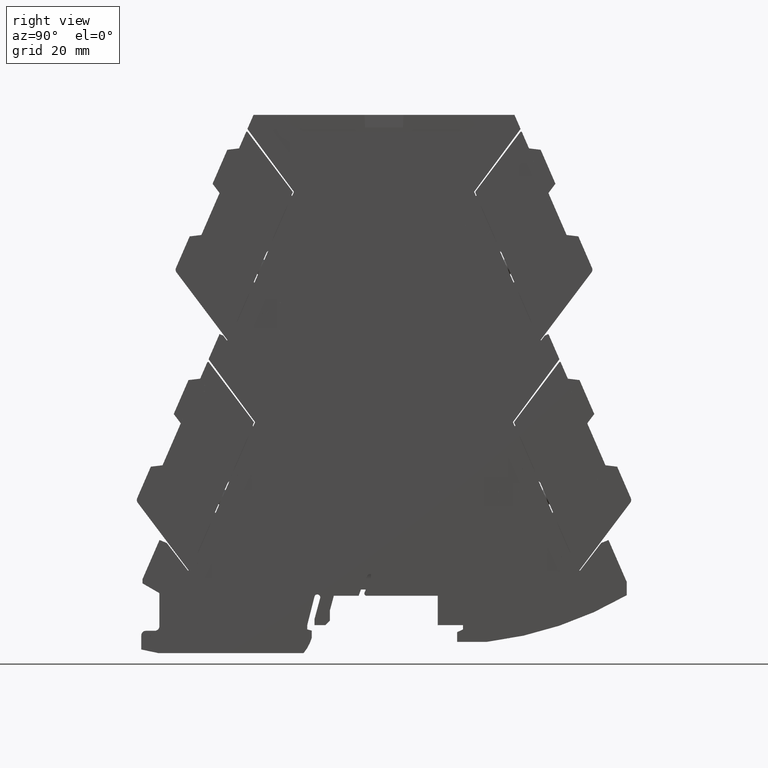
[diagram: clean part render]
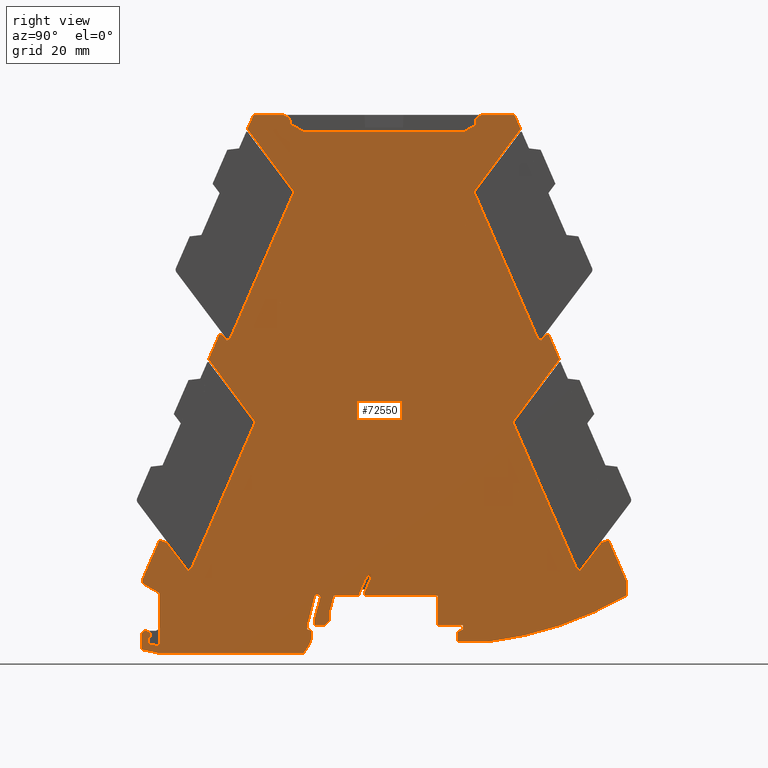
[diagram: same view with one face highlighted and labeled with its STEP entity id]
A machine part, right view. The second image highlights one B-rep face of the part: STEP entity #72550.
In plain terms, the highlighted planar face has unit normal (1, -0, 0).
Its self-contained STEP definition (entity closure, byte-faithful):
#66460=CARTESIAN_POINT('',(31.0485699480267,80.7880698552188,
-8.40000000027808));
#66470=DIRECTION('',(-2.52435655550486E-29,6.5458857184374E-15,1.));
#66480=DIRECTION('',(1.,2.53410721992579E-21,2.52435489670724E-29));
#66490=AXIS2_PLACEMENT_3D('',#66460,#66470,#66480);
#66500=PLANE('',#66490);
#66510=CARTESIAN_POINT('',(-36.7492764080997,-5.05673846836052,
-8.40000000026993));
#66520=DIRECTION('',(8.87912561076062E-12,-6.5458857184369E-15,-1.));
#66530=DIRECTION('',(-1.,-1.11022302459215E-16,-8.87912561076062E-12));
#66540=AXIS2_PLACEMENT_3D('',#66510,#66520,#66530);
#66550=CIRCLE('',#66540,1.);
#66560=CARTESIAN_POINT('',(-37.7492764080997,-5.05673846836052,
-8.40000000027881));
#66570=VERTEX_POINT('',#66560);
#66580=CARTESIAN_POINT('',(-36.1659430747663,-5.86897133042793,
-8.40000000026474));
#66590=VERTEX_POINT('',#66580);
#66600=EDGE_CURVE('',#66570,#66590,#66550,.T.);
#66610=ORIENTED_EDGE('',*,*,#66600,.F.);
#66620=CARTESIAN_POINT('',(-36.0492764080996,-6.03141790284141,
-8.40000000026371));
#66630=DIRECTION('',(8.87912561076062E-12,-6.5458857184369E-15,-1.));
#66640=DIRECTION('',(-1.11022302401093E-16,1.,-6.54588571843789E-15));
#66650=AXIS2_PLACEMENT_3D('',#66620,#66630,#66640);
#66660=CIRCLE('',#66650,0.2);
#66670=CARTESIAN_POINT('',(-36.2492764080996,-6.03141790284142,
-8.40000000026548));
#66680=VERTEX_POINT('',#66670);
#66690=EDGE_CURVE('',#66680,#66590,#66660,.T.);
#66700=ORIENTED_EDGE('',*,*,#66690,.T.);
#66710=CARTESIAN_POINT('',(-36.2492764080996,-1.97775086122127E-13,
-8.40000000026552));
#66720=DIRECTION('',(1.11022302401093E-16,-1.,6.54588571843789E-15));
#66730=VECTOR('',#66720,1.);
#66740=LINE('',#66710,#66730);
#66750=CARTESIAN_POINT('',(-36.2492764080996,-6.89999999999169,
-8.40000000026548));
#66760=VERTEX_POINT('',#66750);
#66770=EDGE_CURVE('',#66680,#66760,#66740,.T.);
#66780=ORIENTED_EDGE('',*,*,#66770,.F.);
#66790=CARTESIAN_POINT('',(1.15118559195513,-15.0305352173948,
-8.39999999993334));
#66800=DIRECTION('',(0.977176363922801,-0.212429644331041,
8.67786027047508E-12));
#66810=VECTOR('',#66800,1.);
#66820=LINE('',#66790,#66810);
#66830=CARTESIAN_POINT('',(-33.7492764080996,-7.44347826086124,
-8.40000000024328));
#66840=VERTEX_POINT('',#66830);
#66850=EDGE_CURVE('',#66760,#66840,#66820,.T.);
#66860=ORIENTED_EDGE('',*,*,#66850,.F.);
#66870=CARTESIAN_POINT('',(-33.7492764080996,-10.2999999999919,
-8.40000000024326));
#66880=DIRECTION('',(-1.11022302401093E-16,1.,-6.54588571843789E-15));
#66890=VECTOR('',#66880,1.);
#66900=LINE('',#66870,#66890);
#66910=CARTESIAN_POINT('',(-33.7492764080996,4.29059892324946,
-8.40000000024335));
#66920=VERTEX_POINT('',#66910);
#66930=EDGE_CURVE('',#66840,#66920,#66900,.T.);
#66940=ORIENTED_EDGE('',*,*,#66930,.F.);
#66950=CARTESIAN_POINT('',(16.0007235920431,-24.4325769690169,
-8.39999999980143));
#66960=DIRECTION('',(-0.866025403784439,0.5,-7.69282128517094E-12));
#66970=VECTOR('',#66960,1.);
#66980=LINE('',#66950,#66970);
#66990=CARTESIAN_POINT('',(-37.4826881752487,6.44608521200866,
-8.40000000027652));
#67000=VERTEX_POINT('',#66990);
#67010=EDGE_CURVE('',#66920,#67000,#66980,.T.);
#67020=ORIENTED_EDGE('',*,*,#67010,.F.);
#67030=CARTESIAN_POINT('',(-37.4826881752487,-1.97912019210798E-13,
-8.40000000027647));
#67040=DIRECTION('',(-5.81221700274194E-26,-1.,6.5458857184369E-15));
#67050=VECTOR('',#67040,1.);
#67060=LINE('',#67030,#67050);
#67070=CARTESIAN_POINT('',(-37.4826881752486,7.38850589467896,
-8.40000000027652));
#67080=VERTEX_POINT('',#67070);
#67090=EDGE_CURVE('',#67080,#67000,#67060,.T.);
#67100=ORIENTED_EDGE('',*,*,#67090,.T.);
#67110=CARTESIAN_POINT('',(-47.5435969064633,-15.7499999999871,
-8.4000000003657));
#67120=DIRECTION('',(-0.398749069928776,-0.917060073948777,
-3.53454010863057E-12));
#67130=VECTOR('',#67120,1.);
#67140=LINE('',#67110,#67130);
#67150=CARTESIAN_POINT('',(-33.7154625218031,16.0525317115858,
-8.40000000024313));
#67160=VERTEX_POINT('',#67150);
#67170=EDGE_CURVE('',#67160,#67080,#67140,.T.);
#67180=ORIENTED_EDGE('',*,*,#67170,.T.);
#67190=CARTESIAN_POINT('',(16.0007235920431,-4.5405873105637,
-8.39999999980156));
#67200=DIRECTION('',(0.923879529460592,-0.382683439730119,
8.20574739335383E-12));
#67210=VECTOR('',#67200,1.);
#67220=LINE('',#67190,#67210);
#67230=CARTESIAN_POINT('',(-32.0991298658879,15.3830247891033,
-8.40000000022877));
#67240=VERTEX_POINT('',#67230);
#67250=EDGE_CURVE('',#67160,#67240,#67220,.T.);
#67260=ORIENTED_EDGE('',*,*,#67250,.F.);
#67270=CARTESIAN_POINT('',(-20.2953199832947,-1.96003881575547E-13,
-8.40000000012386));
#67280=DIRECTION('',(0.608761422684226,-0.79335334514419,
5.41049112021568E-12));
#67290=VECTOR('',#67280,1.);
#67300=LINE('',#67270,#67290);
#67310=CARTESIAN_POINT('',(-27.395125549422,9.25264690874748,
-8.40000000018696));
#67320=VERTEX_POINT('',#67310);
#67330=EDGE_CURVE('',#67240,#67320,#67300,.T.);
#67340=ORIENTED_EDGE('',*,*,#67330,.F.);
#67350=CARTESIAN_POINT('',(16.0007235920431,41.9537642440418,
-8.39999999980186));
#67360=DIRECTION('',(-0.798635514844872,-0.601815016785445,
-7.08724564119859E-12));
#67370=VECTOR('',#67360,1.);
#67380=LINE('',#67350,#67370);
#67390=CARTESIAN_POINT('',(-26.596490034467,9.85446192561595,
-8.40000000017988));
#67400=VERTEX_POINT('',#67390);
#67410=EDGE_CURVE('',#67400,#67320,#67380,.T.);
#67420=ORIENTED_EDGE('',*,*,#67410,.T.);
#67430=CARTESIAN_POINT('',(-37.6816886008946,-15.6397493820656,
-8.40000000027814));
#67440=DIRECTION('',(-0.398749068924602,-0.917060074385404,
-3.53454009971152E-12));
#67450=VECTOR('',#67440,1.);
#67460=LINE('',#67430,#67450);
#67470=CARTESIAN_POINT('',(-12.5490777100436,42.161298467958,
-8.40000000005536));
#67480=VERTEX_POINT('',#67470);
#67490=EDGE_CURVE('',#67480,#67400,#67460,.T.);
#67500=ORIENTED_EDGE('',*,*,#67490,.T.);
#67510=CARTESIAN_POINT('',(30.3030289597346,-15.749999999987,
-8.39999999967449));
#67520=DIRECTION('',(-0.594822786743645,0.803856860622912,
-5.28676819478312E-12));
#67530=VECTOR('',#67520,1.);
#67540=LINE('',#67510,#67530);
#67550=CARTESIAN_POINT('',(-22.8222550002825,56.0447007672601,
-8.40000000014667));
#67560=VERTEX_POINT('',#67550);
#67570=EDGE_CURVE('',#67480,#67560,#67540,.T.);
#67580=ORIENTED_EDGE('',*,*,#67570,.F.);
#67590=CARTESIAN_POINT('',(-22.8222550002825,-1.96284421315774E-13,
-8.4000000001463));
#67600=DIRECTION('',(-5.81221700274194E-26,-1.,6.5458857184369E-15));
#67610=VECTOR('',#67600,1.);
#67620=LINE('',#67590,#67610);
#67630=CARTESIAN_POINT('',(-22.8222550002825,56.1522509362226,
-8.40000000014667));
#67640=VERTEX_POINT('',#67630);
#67650=EDGE_CURVE('',#67640,#67560,#67620,.T.);
#67660=ORIENTED_EDGE('',*,*,#67650,.T.);
#67670=CARTESIAN_POINT('',(-54.0862434948307,-15.7499999999871,
-8.40000000042379));
#67680=DIRECTION('',(-0.39874906892458,-0.917060074385414,
-3.53454009971132E-12));
#67690=VECTOR('',#67680,1.);
#67700=LINE('',#67670,#67690);
#67710=CARTESIAN_POINT('',(-20.4270229818225,61.6609074427903,
-8.40000000012544));
#67720=VERTEX_POINT('',#67710);
#67730=EDGE_CURVE('',#67720,#67640,#67700,.T.);
#67740=ORIENTED_EDGE('',*,*,#67730,.T.);
#67750=CARTESIAN_POINT('',(16.0007235920431,46.5720404249845,
-8.39999999980189));
#67760=DIRECTION('',(0.923879529460593,-0.382683439730116,
8.20574739335384E-12));
#67770=VECTOR('',#67760,1.);
#67780=LINE('',#67750,#67770);
#67790=CARTESIAN_POINT('',(-19.618856654371,61.3261539817587,
-8.40000000011826));
#67800=VERTEX_POINT('',#67790);
#67810=EDGE_CURVE('',#67720,#67800,#67780,.T.);
#67820=ORIENTED_EDGE('',*,*,#67810,.F.);
#67830=CARTESIAN_POINT('',(27.4383555880533,-1.90704499971027E-13,
-8.39999999970003));
#67840=DIRECTION('',(0.608761422684226,-0.79335334514419,
5.41049112021568E-12));
#67850=VECTOR('',#67840,1.);
#67860=LINE('',#67830,#67850);
#67870=CARTESIAN_POINT('',(-18.7951253488245,60.2526464262474,
-8.40000000011094));
#67880=VERTEX_POINT('',#67870);
#67890=EDGE_CURVE('',#67800,#67880,#67860,.T.);
#67900=ORIENTED_EDGE('',*,*,#67890,.F.);
#67910=CARTESIAN_POINT('',(16.0007235920431,86.4731988875032,
-8.39999999980216));
#67920=DIRECTION('',(-0.798635514844872,-0.601815016785445,
-7.08724564119859E-12));
#67930=VECTOR('',#67920,1.);
#67940=LINE('',#67910,#67930);
#67950=CARTESIAN_POINT('',(-17.9964898333609,60.8544614453798,
-8.40000000010385));
#67960=VERTEX_POINT('',#67950);
#67970=EDGE_CURVE('',#67960,#67880,#67940,.T.);
#67980=ORIENTED_EDGE('',*,*,#67970,.T.);
#67990=CARTESIAN_POINT('',(-29.0816883997885,35.3602501376983,
-8.40000000020211));
#68000=DIRECTION('',(-0.398749068924602,-0.917060074385404,
-3.53454009971152E-12));
#68010=VECTOR('',#68000,1.);
#68020=LINE('',#67990,#68010);
#68030=CARTESIAN_POINT('',(-3.94907750974744,93.1612979858592,
-8.39999999997934));
#68040=VERTEX_POINT('',#68030);
#68050=EDGE_CURVE('',#68040,#67960,#68020,.T.);
#68060=ORIENTED_EDGE('',*,*,#68050,.T.);
#68070=CARTESIAN_POINT('',(76.6410436289936,-15.749999999987,
-8.39999999926305));
#68080=DIRECTION('',(0.594822786743645,-0.803856860622912,
5.28676819478312E-12));
#68090=VECTOR('',#68080,1.);
#68100=LINE('',#68070,#68090);
#68110=CARTESIAN_POINT('',(-14.2517103911821,107.084507232027,
-8.40000000007091));
#68120=VERTEX_POINT('',#68110);
#68130=EDGE_CURVE('',#68120,#68040,#68100,.T.);
#68140=ORIENTED_EDGE('',*,*,#68130,.T.);
#68150=CARTESIAN_POINT('',(-67.6616742078144,-15.7499999999871,
-8.40000000054433));
#68160=DIRECTION('',(-0.398749068924771,-0.91706007438533,
-3.53454009971302E-12));
#68170=VECTOR('',#68160,1.);
#68180=LINE('',#68150,#68170);
#68190=CARTESIAN_POINT('',(-12.8970555815698,110.20000000016,
-8.4000000000589));
#68200=VERTEX_POINT('',#68190);
#68210=EDGE_CURVE('',#68200,#68120,#68180,.T.);
#68220=ORIENTED_EDGE('',*,*,#68210,.T.);
#68230=CARTESIAN_POINT('',(16.0007235920431,110.200000000008,
-8.39999999980231));
#68240=DIRECTION('',(-1.,-1.11019657239831E-16,-8.87912561076062E-12));
#68250=VECTOR('',#68240,1.);
#68260=LINE('',#68230,#68250);
#68270=CARTESIAN_POINT('',(-6.49927640809768,110.200000000144,
-8.4000000000038));
#68280=VERTEX_POINT('',#68270);
#68290=EDGE_CURVE('',#68280,#68200,#68260,.T.);
#68300=ORIENTED_EDGE('',*,*,#68290,.T.);
#68310=CARTESIAN_POINT('',(-6.49927640809768,108.400000000144,
-8.40000000000208));
#68320=DIRECTION('',(2.33276942258406E-12,9.5452831765337E-13,1.));
#68330=DIRECTION('',(1.,1.11022309450837E-16,-2.33276942258406E-12));
#68340=AXIS2_PLACEMENT_3D('',#68310,#68320,#68330);
#68350=CIRCLE('',#68340,1.8);
#68360=CARTESIAN_POINT('',(-4.69927640809768,108.40000000013,
-8.40000000000628));
#68370=VERTEX_POINT('',#68360);
#68380=EDGE_CURVE('',#68370,#68280,#68350,.T.);
#68390=ORIENTED_EDGE('',*,*,#68380,.T.);
#68400=CARTESIAN_POINT('',(-4.69927640809765,-1.94272412430621E-13,
-8.39999999998539));
#68410=DIRECTION('',(1.11022302397372E-16,-1.,6.54588571843789E-15));
#68420=VECTOR('',#68410,1.);
#68430=LINE('',#68400,#68420);
#68440=CARTESIAN_POINT('',(-4.69927640817636,108.195448267175,
-8.3999999999861));
#68450=VERTEX_POINT('',#68440);
#68460=EDGE_CURVE('',#68370,#68450,#68430,.T.);
#68470=ORIENTED_EDGE('',*,*,#68460,.F.);
#68480=CARTESIAN_POINT('',(15.992839759395,96.2488494276393,
-8.39999999980229));
#68490=DIRECTION('',(0.86602540378293,-0.500000000002613,
7.69282128515756E-12));
#68500=VECTOR('',#68490,1.);
#68510=LINE('',#68480,#68500);
#68520=CARTESIAN_POINT('',(-1.84927640843099,106.550000000118,
-8.39999999996078));
#68530=VERTEX_POINT('',#68520);
#68540=EDGE_CURVE('',#68450,#68530,#68510,.T.);
#68550=ORIENTED_EDGE('',*,*,#68540,.F.);
#68560=CARTESIAN_POINT('',(16.0007235920431,106.550000000064,
-8.39999999980229));
#68570=DIRECTION('',(1.,-3.03140845380314E-12,8.87912561076064E-12));
#68580=VECTOR('',#68570,1.);
#68590=LINE('',#68560,#68580);
#68600=CARTESIAN_POINT('',(33.8507235915408,106.55000000001,
-8.39999999964379));
#68610=VERTEX_POINT('',#68600);
#68620=EDGE_CURVE('',#68530,#68610,#68590,.T.);
#68630=ORIENTED_EDGE('',*,*,#68620,.F.);
#68640=CARTESIAN_POINT('',(16.0086074241903,96.2488494279499,
-8.39999999980215));
#68650=DIRECTION('',(-0.866025403785962,-0.499999999997362,
-7.68627539946604E-12));
#68660=VECTOR('',#68650,1.);
#68670=LINE('',#68640,#68660);
#68680=CARTESIAN_POINT('',(36.2007235915683,107.906773132985,
-8.39999999962294));
#68690=VERTEX_POINT('',#68680);
#68700=EDGE_CURVE('',#68690,#68610,#68670,.T.);
#68710=ORIENTED_EDGE('',*,*,#68700,.T.);
#68720=CARTESIAN_POINT('',(36.2007235915683,-1.89731703905062E-13,
-8.39999999962223));
#68730=DIRECTION('',(1.11022301047922E-16,-1.,6.54588571843789E-15));
#68740=VECTOR('',#68730,1.);
#68750=LINE('',#68720,#68740);
#68760=CARTESIAN_POINT('',(36.2007235915683,108.400000000117,
-8.39999999962294));
#68770=VERTEX_POINT('',#68760);
#68780=EDGE_CURVE('',#68770,#68690,#68750,.T.);
#68790=ORIENTED_EDGE('',*,*,#68780,.T.);
#68800=CARTESIAN_POINT('',(38.000723591985,108.400000000118,
-8.39999999960695));
#68810=DIRECTION('',(-7.50321528832784E-11,3.82693666728665E-11,1.));
#68820=DIRECTION('',(2.8714329709512E-21,1.,-3.82693666728665E-11));
#68830=AXIS2_PLACEMENT_3D('',#68800,#68810,#68820);
#68840=CIRCLE('',#68830,1.79999999999999);
#68850=CARTESIAN_POINT('',(38.000723591985,110.20000000016,
-8.39999999960697));
#68860=VERTEX_POINT('',#68850);
#68870=EDGE_CURVE('',#68860,#68770,#68840,.T.);
#68880=ORIENTED_EDGE('',*,*,#68870,.T.);
#68890=CARTESIAN_POINT('',(16.0007235920431,110.200000000008,
-8.39999999980231));
#68900=DIRECTION('',(1.,1.11022302260128E-16,8.87912561076062E-12));
#68910=VECTOR('',#68900,1.);
#68920=LINE('',#68890,#68910);
#68930=CARTESIAN_POINT('',(44.898502765186,110.20000000016,
-8.39999999954572));
#68940=VERTEX_POINT('',#68930);
#68950=EDGE_CURVE('',#68860,#68940,#68920,.T.);
#68960=ORIENTED_EDGE('',*,*,#68950,.F.);
#68970=CARTESIAN_POINT('',(99.6631213914307,-15.7499999998392,
-8.39999999905848));
#68980=DIRECTION('',(0.398749068924771,-0.917060074385331,
3.54654604060076E-12));
#68990=VECTOR('',#68980,1.);
#69000=LINE('',#68970,#68990);
#69010=CARTESIAN_POINT('',(46.2531575747983,107.084507232175,
-8.39999999953368));
#69020=VERTEX_POINT('',#69010);
#69030=EDGE_CURVE('',#68940,#69020,#69000,.T.);
#69040=ORIENTED_EDGE('',*,*,#69030,.F.);
#69050=CARTESIAN_POINT('',(-44.6395964453774,-15.7499999998392,
-8.40000000033976));
#69060=DIRECTION('',(-0.594822786743645,-0.803856860622912,
-5.27624428449589E-12));
#69070=VECTOR('',#69060,1.);
#69080=LINE('',#69050,#69070);
#69090=CARTESIAN_POINT('',(35.9505246933637,93.161297986007,
-8.39999999962506));
#69100=VERTEX_POINT('',#69090);
#69110=EDGE_CURVE('',#69020,#69100,#69080,.T.);
#69120=ORIENTED_EDGE('',*,*,#69110,.F.);
#69130=CARTESIAN_POINT('',(61.0831355834047,35.3602501378461,
-8.39999999940137));
#69140=DIRECTION('',(0.398749068924602,-0.917060074385404,
3.54654604059925E-12));
#69150=VECTOR('',#69140,1.);
#69160=LINE('',#69130,#69150);
#69170=CARTESIAN_POINT('',(49.9979370169772,60.8544614455276,
-8.39999999949996));
#69180=VERTEX_POINT('',#69170);
#69190=EDGE_CURVE('',#69100,#69180,#69160,.T.);
#69200=ORIENTED_EDGE('',*,*,#69190,.F.);
#69210=CARTESIAN_POINT('',(16.0007235915731,86.4731988876511,
-8.399999999802));
#69220=DIRECTION('',(0.798635514844873,-0.601815016785445,
7.09512446584562E-12));
#69230=VECTOR('',#69220,1.);
#69240=LINE('',#69210,#69230);
#69250=CARTESIAN_POINT('',(50.7965725324408,60.2526464263953,
-8.39999999949287));
#69260=VERTEX_POINT('',#69250);
#69270=EDGE_CURVE('',#69180,#69260,#69240,.T.);
#69280=ORIENTED_EDGE('',*,*,#69270,.F.);
#69290=CARTESIAN_POINT('',(4.56309159556294,1.47644561573134E-10,
-8.39999999990299));
#69300=DIRECTION('',(-0.608761422684226,-0.79335334514419,
-5.40004715778149E-12));
#69310=VECTOR('',#69300,1.);
#69320=LINE('',#69290,#69310);
#69330=CARTESIAN_POINT('',(51.6203038379872,61.3261539819065,
-8.39999999948557));
#69340=VERTEX_POINT('',#69330);
#69350=EDGE_CURVE('',#69340,#69260,#69320,.T.);
#69360=ORIENTED_EDGE('',*,*,#69350,.T.);
#69370=CARTESIAN_POINT('',(16.0007235915731,46.5720404251324,
-8.39999999980174));
#69380=DIRECTION('',(-0.923879529460593,-0.382683439730116,
-8.20073738922822E-12));
#69390=VECTOR('',#69380,1.);
#69400=LINE('',#69370,#69390);
#69410=CARTESIAN_POINT('',(52.4284701654388,61.6609074429381,
-8.39999999947839));
#69420=VERTEX_POINT('',#69410);
#69430=EDGE_CURVE('',#69420,#69340,#69400,.T.);
#69440=ORIENTED_EDGE('',*,*,#69430,.T.);
#69450=CARTESIAN_POINT('',(86.0876906784469,-15.7499999998392,
-8.39999999917902));
#69460=DIRECTION('',(0.39874906892458,-0.917060074385414,
3.54654604059906E-12));
#69470=VECTOR('',#69460,1.);
#69480=LINE('',#69450,#69470);
#69490=CARTESIAN_POINT('',(54.8237021838729,56.1522509364297,
-8.39999999945724));
#69500=VERTEX_POINT('',#69490);
#69510=EDGE_CURVE('',#69420,#69500,#69480,.T.);
#69520=ORIENTED_EDGE('',*,*,#69510,.F.);
#69530=CARTESIAN_POINT('',(54.823702183873,-1.8766418513572E-13,
-8.39999999945687));
#69540=DIRECTION('',(5.81221700274194E-26,1.,-6.5458857184369E-15));
#69550=VECTOR('',#69540,1.);
#69560=LINE('',#69530,#69550);
#69570=CARTESIAN_POINT('',(54.823702183873,56.0447007673732,
-8.39999999945724));
#69580=VERTEX_POINT('',#69570);
#69590=EDGE_CURVE('',#69580,#69500,#69560,.T.);
#69600=ORIENTED_EDGE('',*,*,#69590,.T.);
#69610=CARTESIAN_POINT('',(1.69841822388164,-15.7499999998392,
-8.39999999992832));
#69620=DIRECTION('',(0.594822786743645,0.803856860622912,
5.27624428449589E-12));
#69630=VECTOR('',#69620,1.);
#69640=LINE('',#69610,#69630);
#69650=CARTESIAN_POINT('',(44.5505248936598,42.1612984681058,
-8.39999999954821));
#69660=VERTEX_POINT('',#69650);
#69670=EDGE_CURVE('',#69660,#69580,#69640,.T.);
#69680=ORIENTED_EDGE('',*,*,#69670,.T.);
#69690=CARTESIAN_POINT('',(69.6831357845108,-15.6397493819178,
-8.39999999932468));
#69700=DIRECTION('',(0.398749068924602,-0.917060074385404,
3.54654604059925E-12));
#69710=VECTOR('',#69700,1.);
#69720=LINE('',#69690,#69710);
#69730=CARTESIAN_POINT('',(58.5979372180832,9.85446192576378,
-8.39999999942327));
#69740=VERTEX_POINT('',#69730);
#69750=EDGE_CURVE('',#69660,#69740,#69720,.T.);
#69760=ORIENTED_EDGE('',*,*,#69750,.F.);
#69770=CARTESIAN_POINT('',(16.0007235920431,41.9537642439283,
-8.39999999980186));
#69780=DIRECTION('',(0.798635514844873,-0.601815016785445,
7.09512446584562E-12));
#69790=VECTOR('',#69780,1.);
#69800=LINE('',#69770,#69790);
#69810=CARTESIAN_POINT('',(59.3965727331085,9.25264690841672,
-8.39999999941633));
#69820=VERTEX_POINT('',#69810);
#69830=EDGE_CURVE('',#69740,#69820,#69800,.T.);
#69840=ORIENTED_EDGE('',*,*,#69830,.F.);
#69850=CARTESIAN_POINT('',(52.2967671672304,-1.87944724875908E-13,
-8.39999999947931));
#69860=DIRECTION('',(-0.608761422684226,-0.793353345144191,
-5.40008277935982E-12));
#69870=VECTOR('',#69860,1.);
#69880=LINE('',#69850,#69870);
#69890=CARTESIAN_POINT('',(64.1005770538573,15.3830247943601,
-8.3999999993746));
#69900=VERTEX_POINT('',#69890);
#69910=EDGE_CURVE('',#69900,#69820,#69880,.T.);
#69920=ORIENTED_EDGE('',*,*,#69910,.T.);
#69930=CARTESIAN_POINT('',(16.0007235920431,-4.54058730691545,
-8.39999999980156));
#69940=DIRECTION('',(-0.923879529460591,-0.382683439730121,
-8.20073738922819E-12));
#69950=VECTOR('',#69940,1.);
#69960=LINE('',#69930,#69950);
#69970=CARTESIAN_POINT('',(65.7169097087608,16.0525317164236,
-8.39999999936026));
#69980=VERTEX_POINT('',#69970);
#69990=EDGE_CURVE('',#69980,#69900,#69960,.T.);
#70000=ORIENTED_EDGE('',*,*,#69990,.T.);
#70010=CARTESIAN_POINT('',(79.5450440541298,-15.749999999987,
-8.39999999923727));
#70020=DIRECTION('',(-0.398749068924908,0.917060074385271,
-3.54654604060197E-12));
#70030=VECTOR('',#70020,1.);
#70040=LINE('',#70010,#70030);
#70050=CARTESIAN_POINT('',(69.750723591901,6.77539492033617,
-8.39999999932438));
#70060=VERTEX_POINT('',#70050);
#70070=EDGE_CURVE('',#70060,#69980,#70040,.T.);
#70080=ORIENTED_EDGE('',*,*,#70070,.T.);
#70090=CARTESIAN_POINT('',(69.750723591901,-15.749999999987,
-8.39999999932423));
#70100=DIRECTION('',(1.11022302400457E-16,-1.,6.54588571843789E-15));
#70110=VECTOR('',#70100,1.);
#70120=LINE('',#70090,#70110);
#70130=CARTESIAN_POINT('',(69.750723591901,3.81290792925418,
-8.39999999932436));
#70140=VERTEX_POINT('',#70130);
#70150=EDGE_CURVE('',#70060,#70140,#70120,.T.);
#70160=ORIENTED_EDGE('',*,*,#70150,.F.);
#70170=CARTESIAN_POINT('',(29.5007235919003,72.9500000000085,
-8.3999999996822));
#70180=DIRECTION('',(-8.87912561076062E-12,6.5458857184369E-15,1.));
#70190=DIRECTION('',(1.,1.11022302459215E-16,8.87912561076062E-12));
#70200=AXIS2_PLACEMENT_3D('',#70170,#70180,#70190);
#70210=CIRCLE('',#70200,80.0000000000001);
#70220=CARTESIAN_POINT('',(38.8654179275423,-6.49999999999153,
-8.39999999959853));
#70230=VERTEX_POINT('',#70220);
#70240=EDGE_CURVE('',#70230,#70140,#70210,.T.);
#70250=ORIENTED_EDGE('',*,*,#70240,.T.);
#70260=CARTESIAN_POINT('',(16.0007235920431,-6.49999999999153,
-8.39999999980155));
#70270=DIRECTION('',(-1.,-1.11022302516409E-16,-8.87912561076062E-12));
#70280=VECTOR('',#70270,1.);
#70290=LINE('',#70260,#70280);
#70300=CARTESIAN_POINT('',(32.2007235919003,-6.49999999999153,
-8.39999999965771));
#70310=VERTEX_POINT('',#70300);
#70320=EDGE_CURVE('',#70230,#70310,#70290,.T.);
#70330=ORIENTED_EDGE('',*,*,#70320,.F.);
#70340=CARTESIAN_POINT('',(32.2007235919003,-10.2999999999919,
-8.39999999965768));
#70350=DIRECTION('',(-1.11022302401093E-16,1.,-6.54588571843789E-15));
#70360=VECTOR('',#70350,1.);
#70370=LINE('',#70340,#70360);
#70380=CARTESIAN_POINT('',(32.2007235919003,-4.35619995559415,
-8.39999999965772));
#70390=VERTEX_POINT('',#70380);
#70400=EDGE_CURVE('',#70310,#70390,#70370,.T.);
#70410=ORIENTED_EDGE('',*,*,#70400,.F.);
#70420=CARTESIAN_POINT('',(16.0007235920431,-11.9103840176385,
-8.39999999980151));
#70430=DIRECTION('',(-0.90630778703665,-0.4226182617407,
-8.04445427226503E-12));
#70440=VECTOR('',#70430,1.);
#70450=LINE('',#70420,#70440);
#70460=CARTESIAN_POINT('',(33.5007235919003,-3.74999999999265,
-8.39999999964618));
#70470=VERTEX_POINT('',#70460);
#70480=EDGE_CURVE('',#70470,#70390,#70450,.T.);
#70490=ORIENTED_EDGE('',*,*,#70480,.T.);
#70500=CARTESIAN_POINT('',(33.5007235919003,-10.2999999999919,
-8.39999999964614));
#70510=DIRECTION('',(1.11022302401093E-16,-1.,6.54588571843789E-15));
#70520=VECTOR('',#70510,1.);
#70530=LINE('',#70500,#70520);
#70540=CARTESIAN_POINT('',(33.5007235919003,-2.79999999999156,
-8.39999999964619));
#70550=VERTEX_POINT('',#70540);
#70560=EDGE_CURVE('',#70550,#70470,#70530,.T.);
#70570=ORIENTED_EDGE('',*,*,#70560,.T.);
#70580=CARTESIAN_POINT('',(16.0007235920431,-2.79999999999156,
-8.39999999980157));
#70590=DIRECTION('',(-1.,-1.11022302516409E-16,-8.87912561076062E-12));
#70600=VECTOR('',#70590,1.);
#70610=LINE('',#70580,#70600);
#70620=CARTESIAN_POINT('',(27.9007235919005,-2.79999999999156,
-8.39999999969591));
#70630=VERTEX_POINT('',#70620);
#70640=EDGE_CURVE('',#70550,#70630,#70610,.T.);
#70650=ORIENTED_EDGE('',*,*,#70640,.F.);
#70660=CARTESIAN_POINT('',(27.9007235919005,-10.2999999999919,
-8.39999999969586));
#70670=DIRECTION('',(-1.11022302401093E-16,1.,-6.54588571843789E-15));
#70680=VECTOR('',#70670,1.);
#70690=LINE('',#70660,#70680);
#70700=CARTESIAN_POINT('',(27.9007235919005,3.70000000000824,
-8.39999999969595));
#70710=VERTEX_POINT('',#70700);
#70720=EDGE_CURVE('',#70630,#70710,#70690,.T.);
#70730=ORIENTED_EDGE('',*,*,#70720,.F.);
#70740=CARTESIAN_POINT('',(1.15118559195512,3.70000000000824,
-8.40000000154305));
#70750=DIRECTION('',(1.,1.11022302459213E-16,8.87912561076062E-12));
#70760=VECTOR('',#70750,1.);
#70770=LINE('',#70740,#70760);
#70780=CARTESIAN_POINT('',(12.1503137597697,3.7000000001435,
-8.40000000144538));
#70790=VERTEX_POINT('',#70780);
#70800=EDGE_CURVE('',#70790,#70710,#70770,.T.);
#70810=ORIENTED_EDGE('',*,*,#70800,.T.);
#70820=CARTESIAN_POINT('',(12.1503137597697,4.2000000001435,
-8.3999999998358));
#70830=DIRECTION('',(-8.87912561076062E-12,6.49014673646192E-15,1.));
#70840=DIRECTION('',(1.,1.11022302459215E-16,8.87912561076062E-12));
#70850=AXIS2_PLACEMENT_3D('',#70820,#70830,#70840);
#70860=CIRCLE('',#70850,0.5);
#70870=CARTESIAN_POINT('',(11.6821030178369,4.37543859663472,
-8.39999999983996));
#70880=VERTEX_POINT('',#70870);
#70890=EDGE_CURVE('',#70880,#70790,#70860,.T.);
#70900=ORIENTED_EDGE('',*,*,#70890,.T.);
#70910=CARTESIAN_POINT('',(33.5007235919018,-3.79999999985613,
-8.39999999964618));
#70920=DIRECTION('',(-8.87912561076062E-12,6.49014673646192E-15,1.));
#70930=DIRECTION('',(1.,1.11022302459215E-16,8.87912561076062E-12));
#70940=AXIS2_PLACEMENT_3D('',#70910,#70920,#70930);
#70950=CIRCLE('',#70940,23.3);
#70960=CARTESIAN_POINT('',(13.0907235918997,7.43930157986456,
-8.39999999982747));
#70970=VERTEX_POINT('',#70960);
#70980=EDGE_CURVE('',#70970,#70880,#70950,.T.);
#70990=ORIENTED_EDGE('',*,*,#70980,.T.);
#71000=CARTESIAN_POINT('',(13.0907235918997,-1.9229737075164E-13,
-8.39999999982743));
#71010=DIRECTION('',(1.11022302401093E-16,-1.,6.54588571843789E-15));
#71020=VECTOR('',#71010,1.);
#71030=LINE('',#71000,#71020);
#71040=CARTESIAN_POINT('',(13.0907235918997,8.45000000014386,
-8.39999999982748));
#71050=VERTEX_POINT('',#71040);
#71060=EDGE_CURVE('',#71050,#70970,#71030,.T.);
#71070=ORIENTED_EDGE('',*,*,#71060,.T.);
#71080=CARTESIAN_POINT('',(1.15118559195512,8.45000000014386,
-8.39999999993349));
#71090=DIRECTION('',(1.,1.11022302459207E-16,8.87912561076062E-12));
#71100=VECTOR('',#71090,1.);
#71110=LINE('',#71080,#71100);
#71120=CARTESIAN_POINT('',(12.5143589710343,8.45000000014386,
-8.3999999998326));
#71130=VERTEX_POINT('',#71120);
#71140=EDGE_CURVE('',#71130,#71050,#71110,.T.);
#71150=ORIENTED_EDGE('',*,*,#71140,.T.);
#71160=CARTESIAN_POINT('',(33.5007235919018,-3.79999999985613,
-8.39999999964618));
#71170=DIRECTION('',(-8.87912561076062E-12,6.49014673646192E-15,1.));
#71180=DIRECTION('',(1.,1.11022302459215E-16,8.87912561076062E-12));
#71190=AXIS2_PLACEMENT_3D('',#71160,#71170,#71180);
#71200=CIRCLE('',#71190,24.3);
#71210=CARTESIAN_POINT('',(10.387091250792,3.70000000000824,
-8.40000000146104));
#71220=VERTEX_POINT('',#71210);
#71230=EDGE_CURVE('',#71130,#71220,#71200,.T.);
#71240=ORIENTED_EDGE('',*,*,#71230,.F.);
#71250=CARTESIAN_POINT('',(16.0007235920431,3.70000000000824,
-8.39999999980161));
#71260=DIRECTION('',(-1.,-1.11022302459215E-16,-8.87912561076062E-12));
#71270=VECTOR('',#71260,1.);
#71280=LINE('',#71250,#71270);
#71290=CARTESIAN_POINT('',(4.89244269033672,3.70000000000824,
-8.39999999990025));
#71300=VERTEX_POINT('',#71290);
#71310=EDGE_CURVE('',#71220,#71300,#71280,.T.);
#71320=ORIENTED_EDGE('',*,*,#71310,.F.);
#71330=CARTESIAN_POINT('',(1.10939196970329,-10.2999999999919,
-8.39999999993374));
#71340=DIRECTION('',(0.260861917169192,0.965376123679685,
2.30990648782818E-12));
#71350=VECTOR('',#71340,1.);
#71360=LINE('',#71330,#71350);
#71370=CARTESIAN_POINT('',(4.00072359190165,0.400000000008041,
-8.39999999990814));
#71380=VERTEX_POINT('',#71370);
#71390=EDGE_CURVE('',#71380,#71300,#71360,.T.);
#71400=ORIENTED_EDGE('',*,*,#71390,.T.);
#71410=CARTESIAN_POINT('',(4.00072359190165,-10.2999999999919,
-8.39999999990807));
#71420=DIRECTION('',(-1.11022302401093E-16,1.,-6.54588571843789E-15));
#71430=VECTOR('',#71420,1.);
#71440=LINE('',#71410,#71430);
#71450=CARTESIAN_POINT('',(4.00072359190165,-1.79999999999194,
-8.39999999990813));
#71460=VERTEX_POINT('',#71450);
#71470=EDGE_CURVE('',#71460,#71380,#71440,.T.);
#71480=ORIENTED_EDGE('',*,*,#71470,.T.);
#71490=CARTESIAN_POINT('',(16.0007235920431,10.2000000001495,
-8.39999999980166));
#71500=DIRECTION('',(0.707106781186548,0.707106781186547,
6.27386129019561E-12));
#71510=VECTOR('',#71500,1.);
#71520=LINE('',#71490,#71510);
#71530=CARTESIAN_POINT('',(3.00072359190204,-2.79999999999155,
-8.399999999917));
#71540=VERTEX_POINT('',#71530);
#71550=EDGE_CURVE('',#71540,#71460,#71520,.T.);
#71560=ORIENTED_EDGE('',*,*,#71550,.T.);
#71570=CARTESIAN_POINT('',(16.0007235920431,-2.79999999999155,
-8.39999999980157));
#71580=DIRECTION('',(-1.,-1.11022302459215E-16,-8.87912561076062E-12));
#71590=VECTOR('',#71580,1.);
#71600=LINE('',#71570,#71590);
#71610=CARTESIAN_POINT('',(0.600723591896554,-2.79999999999155,
-8.39999999993831));
#71620=VERTEX_POINT('',#71610);
#71630=EDGE_CURVE('',#71540,#71620,#71600,.T.);
#71640=ORIENTED_EDGE('',*,*,#71630,.F.);
#71650=CARTESIAN_POINT('',(0.600723591896555,-10.2999999999919,
-8.39999999993826));
#71660=DIRECTION('',(-1.11022302401093E-16,1.,-6.54588571843789E-15));
#71670=VECTOR('',#71660,1.);
#71680=LINE('',#71650,#71670);
#71690=CARTESIAN_POINT('',(0.600723591896554,-1.49226058767275,
-8.39999999993832));
#71700=VERTEX_POINT('',#71690);
#71710=EDGE_CURVE('',#71620,#71700,#71680,.T.);
#71720=ORIENTED_EDGE('',*,*,#71710,.F.);
#71730=CARTESIAN_POINT('',(-1.77928533174095,-10.2999999999919,
-8.39999999995939));
#71740=DIRECTION('',(-0.260861917169191,-0.965376123679685,
-2.30990648782817E-12));
#71750=VECTOR('',#71740,1.);
#71760=LINE('',#71730,#71750);
#71770=CARTESIAN_POINT('',(1.86337090577481,3.18043975384847,
-8.39999999992714));
#71780=VERTEX_POINT('',#71770);
#71790=EDGE_CURVE('',#71780,#71700,#71760,.T.);
#71800=ORIENTED_EDGE('',*,*,#71790,.T.);
#71810=CARTESIAN_POINT('',(1.235876425383,3.35000000000839,
-8.39999999993271));
#71820=DIRECTION('',(8.87912561076062E-12,-6.5458857184369E-15,-1.));
#71830=DIRECTION('',(-1.,-1.11022302459215E-16,-8.87912561076062E-12));
#71840=AXIS2_PLACEMENT_3D('',#71810,#71820,#71830);
#71850=CIRCLE('',#71840,0.65);
#71860=CARTESIAN_POINT('',(0.605938711405617,3.51024505144196,
-8.3999999999383));
#71870=VERTEX_POINT('',#71860);
#71880=EDGE_CURVE('',#71870,#71780,#71850,.T.);
#71890=ORIENTED_EDGE('',*,*,#71880,.T.);
#71900=CARTESIAN_POINT('',(-2.90714421643536,-10.2999999999919,
-8.39999999996941));
#71910=DIRECTION('',(-0.246530848359328,-0.969134944580594,
-2.18263452291688E-12));
#71920=VECTOR('',#71910,1.);
#71930=LINE('',#71900,#71920);
#71940=CARTESIAN_POINT('',(-0.999276408103244,-2.79999999999155,
-8.39999999995251));
#71950=VERTEX_POINT('',#71940);
#71960=EDGE_CURVE('',#71870,#71950,#71930,.T.);
#71970=ORIENTED_EDGE('',*,*,#71960,.F.);
#71980=CARTESIAN_POINT('',(-0.999276408103243,-10.2999999999919,
-8.39999999995247));
#71990=DIRECTION('',(1.11022302401093E-16,-1.,6.54588571843789E-15));
#72000=VECTOR('',#71990,1.);
#72010=LINE('',#71980,#72000);
#72020=CARTESIAN_POINT('',(-0.999276408103243,-3.74999999999137,
-8.39999999995251));
#72030=VERTEX_POINT('',#72020);
#72040=EDGE_CURVE('',#71950,#72030,#72010,.T.);
#72050=ORIENTED_EDGE('',*,*,#72040,.F.);
#72060=CARTESIAN_POINT('',(16.0007235920431,-8.30513627135966,
-8.39999999980154));
#72070=DIRECTION('',(0.965925826289068,-0.25881904510252,
8.57827094218938E-12));
#72080=VECTOR('',#72070,1.);
#72090=LINE('',#72060,#72080);
#72100=CARTESIAN_POINT('',(0.000723591896556769,-4.01794919242244,
-8.39999999994363));
#72110=VERTEX_POINT('',#72100);
#72120=EDGE_CURVE('',#72030,#72110,#72090,.T.);
#72130=ORIENTED_EDGE('',*,*,#72120,.F.);
#72140=CARTESIAN_POINT('',(0.000723591896556991,-10.2999999999919,
-8.39999999994359));
#72150=DIRECTION('',(-5.55111511698355E-17,1.,-6.5458857184374E-15));
#72160=VECTOR('',#72150,1.);
#72170=LINE('',#72140,#72160);
#72180=CARTESIAN_POINT('',(0.000723591896556991,-5.62763633938895,
-8.39999999994362));
#72190=VERTEX_POINT('',#72180);
#72200=EDGE_CURVE('',#72190,#72110,#72170,.T.);
#72210=ORIENTED_EDGE('',*,*,#72200,.T.);
#72220=CARTESIAN_POINT('',(-9.09927640810336,-2.89999999999153,
-8.40000000002444));
#72230=DIRECTION('',(-8.87912561076062E-12,6.5458857184369E-15,1.));
#72240=DIRECTION('',(1.,-3.30054472363818E-27,8.87912561076062E-12));
#72250=AXIS2_PLACEMENT_3D('',#72220,#72230,#72240);
#72260=CIRCLE('',#72250,9.49999999999998);
#72270=CARTESIAN_POINT('',(-1.81641982569014,-8.99999999999154,
-8.39999999995973));
#72280=VERTEX_POINT('',#72270);
#72290=EDGE_CURVE('',#72280,#72190,#72260,.T.);
#72300=ORIENTED_EDGE('',*,*,#72290,.T.);
#72310=CARTESIAN_POINT('',(16.0007235920431,-8.99999999999153,
-8.39999999980153));
#72320=DIRECTION('',(1.,5.38934856045505E-26,8.87912561076062E-12));
#72330=VECTOR('',#72320,1.);
#72340=LINE('',#72310,#72330);
#72350=CARTESIAN_POINT('',(-33.9492764081028,-8.99999999999153,
-8.40000000024504));
#72360=VERTEX_POINT('',#72350);
#72370=EDGE_CURVE('',#72360,#72280,#72340,.T.);
#72380=ORIENTED_EDGE('',*,*,#72370,.T.);
#72390=CARTESIAN_POINT('',(16.0007235920431,-19.5157894737068,
-8.39999999980146));
#72400=DIRECTION('',(-0.978549784986748,0.206010481049847,
-8.69001497834589E-12));
#72410=VECTOR('',#72400,1.);
#72420=LINE('',#72390,#72410);
#72430=CARTESIAN_POINT('',(-37.7492764080997,-8.19999999999217,
-8.40000000027879));
#72440=VERTEX_POINT('',#72430);
#72450=EDGE_CURVE('',#72360,#72440,#72420,.T.);
#72460=ORIENTED_EDGE('',*,*,#72450,.F.);
#72470=CARTESIAN_POINT('',(-37.7492764080997,-10.2999999999919,
-8.40000000027877));
#72480=DIRECTION('',(5.55111511698355E-17,-1.,6.5458857184374E-15));
#72490=VECTOR('',#72480,1.);
#72500=LINE('',#72470,#72490);
#72510=EDGE_CURVE('',#66570,#72440,#72500,.T.);
#72520=ORIENTED_EDGE('',*,*,#72510,.T.);
#72530=EDGE_LOOP('',(#72520,#72460,#72380,#72300,#72210,#72130,#72050,
#71970,#71890,#71800,#71720,#71640,#71560,#71480,#71400,#71320,#71240,
#71150,#71070,#70990,#70900,#70810,#70730,#70650,#70570,#70490,#70410,
#70330,#70250,#70160,#70080,#70000,#69920,#69840,#69760,#69680,#69600,
#69520,#69440,#69360,#69280,#69200,#69120,#69040,#68960,#68880,#68790,
#68710,#68630,#68550,#68470,#68390,#68300,#68220,#68140,#68060,#67980,
#67900,#67820,#67740,#67660,#67580,#67500,#67420,#67340,#67260,#67180,
#67100,#67020,#66940,#66860,#66780,#66700,#66610));
#72540=FACE_OUTER_BOUND('',#72530,.T.);
#72550=ADVANCED_FACE('',(#72540),#66500,.T.);